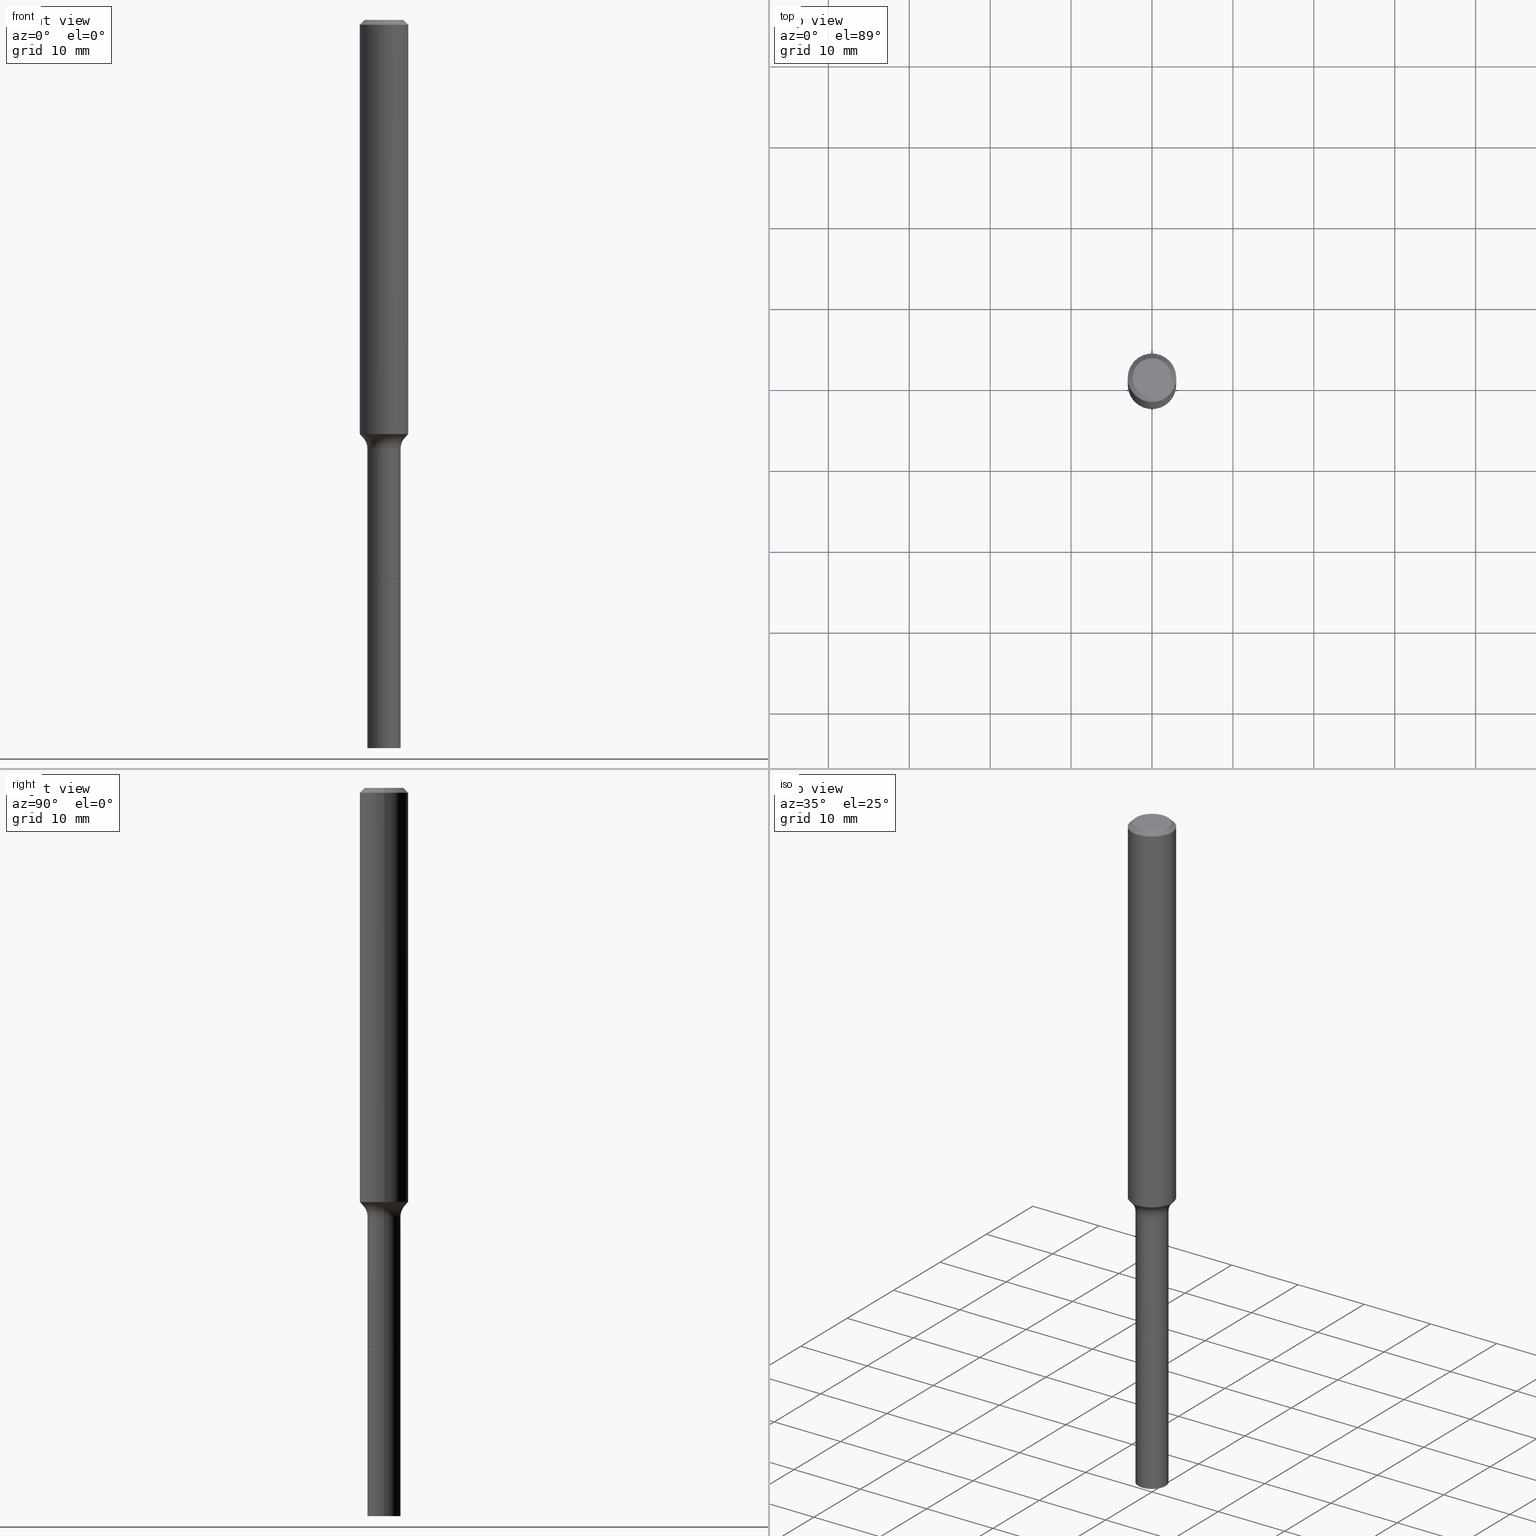
[diagram: canonical four-view strip — front | top / right | iso, engineering-drawing reading convention]
A machine part, canonical four-view strip (front | top / right | iso — engineering-drawing reading convention). The complete STEP part file that produces these views, byte-faithful:
ISO-10303-21;
HEADER;
FILE_DESCRIPTION (( 'STEP AP203' ),
    '1' );
FILE_NAME ('67827.STEP',
    '2025-04-01T15:31:14',
    ( '' ),
    ( '' ),
    'SwSTEP 2.0',
    'SolidWorks 2024',
    '' );
FILE_SCHEMA (( 'CONFIG_CONTROL_DESIGN' ));
ENDSEC;

DATA;
#1 = CIRCLE ( 'NONE', #419, 0.07999999999999990452 ) ;
#2 = DIRECTION ( 'NONE',  ( -2.445468806185136597E-29, 3.491481338843145583E-15, 1.000000000000000000 ) ) ;
#3 = CALENDAR_DATE ( 2025, 1, 4 ) ;
#4 = CARTESIAN_POINT ( 'NONE',  ( 3.772893820736570314E-46, -5.386692455541008845E-32, -1.542810037565835988E-17 ) ) ;
#5 = FACE_OUTER_BOUND ( 'NONE', #436, .T. ) ;
#6 = APPROVAL_ROLE ( '' ) ;
#7 = PRODUCT_RELATED_PRODUCT_CATEGORY ( 'detail', '', ( #500 ) ) ;
#8 = DIRECTION ( 'NONE',  ( 0.7071067811864629737, -2.468850131081371564E-15, 0.7071067811866319497 ) ) ;
#9 = MECHANICAL_CONTEXT ( 'NONE', #49, 'mechanical' ) ;
#10 = EDGE_LOOP ( 'NONE', ( #292, #508, #492, #300 ) ) ;
#11 = LINE ( 'NONE', #205, #420 ) ;
#12 = AXIS2_PLACEMENT_3D ( 'NONE', #149, #234, #271 ) ;
#13 = AXIS2_PLACEMENT_3D ( 'NONE', #322, #392, #488 ) ;
#14 = ORIENTED_EDGE ( 'NONE', *, *, #177, .F. ) ;
#15 = VERTEX_POINT ( 'NONE', #267 ) ;
#16 = CARTESIAN_POINT ( 'NONE',  ( -0.08069999999999995233, -7.815050502879196918E-15, -2.086299999999999599 ) ) ;
#17 = EDGE_CURVE ( 'NONE', #299, #179, #429, .T. ) ;
#18 = ORIENTED_EDGE ( 'NONE', *, *, #48, .F. ) ;
#19 = DIRECTION ( 'NONE',  ( 1.000000000000000000, -6.982962677686277755E-15, 0.000000000000000000 ) ) ;
#20 = CLOSED_SHELL ( 'NONE', ( #61, #232, #289, #395 ) ) ;
#21 = CIRCLE ( 'NONE', #228, 0.09447999999999998066 ) ;
#22 = ORIENTED_EDGE ( 'NONE', *, *, #258, .F. ) ;
#23 = ADVANCED_FACE ( 'NONE', ( #306 ), #25, .T. ) ;
#24 = CARTESIAN_POINT ( 'NONE',  ( 4.926838493732249022E-29, -7.034219621551748775E-15, -2.014680572195880703 ) ) ;
#25 = CONICAL_SURFACE ( 'NONE', #456, 0.1021917038704663744, 0.7504915783575545341 ) ;
#26 = DIRECTION ( 'NONE',  ( -2.445468806185136597E-29, 3.491481338843145583E-15, 1.000000000000000000 ) ) ;
#27 = AXIS2_PLACEMENT_3D ( 'NONE', #171, #359, #484 ) ;
#28 =( CONVERSION_BASED_UNIT ( 'INCH', #187 ) LENGTH_UNIT ( ) NAMED_UNIT ( #38 ) );
#29 = CC_DESIGN_PERSON_AND_ORGANIZATION_ASSIGNMENT ( #95, #162, ( #500 ) ) ;
#30 = DIRECTION ( 'NONE',  ( -2.445468806185136877E-29, 3.491481338843145188E-15, 1.000000000000000000 ) ) ;
#31 = CARTESIAN_POINT ( 'NONE',  ( 4.968557113111869591E-29, -7.093782753446066454E-15, -2.031740131194999854 ) ) ;
#32 =( NAMED_UNIT ( * ) SI_UNIT ( $, .STERADIAN. ) SOLID_ANGLE_UNIT ( ) );
#33 = CARTESIAN_POINT ( 'NONE',  ( 0.1181000000000002326, -7.858907513786497827E-15, -2.014680572195880703 ) ) ;
#34 = CARTESIAN_POINT ( 'NONE',  ( 6.649963324659240635E-29, -9.494385204716164018E-15, -2.719299999999999606 ) ) ;
#35 = DIRECTION ( 'NONE',  ( -2.445468806185136597E-29, 3.491481338843145583E-15, 1.000000000000000000 ) ) ;
#36 = EDGE_LOOP ( 'NONE', ( #253, #184, #406, #124 ) ) ;
#37 = AXIS2_PLACEMENT_3D ( 'NONE', #286, #438, #87 ) ;
#38 = DIMENSIONAL_EXPONENTS ( 1.000000000000000000, 0.000000000000000000, 0.000000000000000000, 0.000000000000000000, 0.000000000000000000, 0.000000000000000000, 0.000000000000000000 ) ;
#39 = EDGE_CURVE ( 'NONE', #344, #52, #70, .T. ) ;
#40 = DIRECTION ( 'NONE',  ( 2.438088387897960049E-29, -3.491481338843145188E-15, -1.000000000000000000 ) ) ;
#41 = DIRECTION ( 'NONE',  ( 1.000000000000000000, -6.982962677686264344E-15, 4.883557194083112901E-29 ) ) ;
#42 = CALENDAR_DATE ( 2025, 1, 4 ) ;
#43 = VERTEX_POINT ( 'NONE', #470 ) ;
#44 = AXIS2_PLACEMENT_3D ( 'NONE', #220, #413, #60 ) ;
#45 = DIRECTION ( 'NONE',  ( -1.000000000000000000, 6.982962677686266711E-15, 0.000000000000000000 ) ) ;
#46 = DIRECTION ( 'NONE',  ( -1.000000000000000000, 7.105427357601006592E-15, 0.000000000000000000 ) ) ;
#47 = COORDINATED_UNIVERSAL_TIME_OFFSET ( 5, 0, .BEHIND. ) ;
#48 = EDGE_CURVE ( 'NONE', #211, #59, #222, .T. ) ;
#49 = APPLICATION_CONTEXT ( 'configuration controlled 3d designs of mechanical parts and assemblies' ) ;
#50 = CARTESIAN_POINT ( 'NONE',  ( 6.649963324659240635E-29, -9.494385204716164018E-15, -2.719299999999999606 ) ) ;
#51 = CALENDAR_DATE ( 2025, 1, 4 ) ;
#52 = VERTEX_POINT ( 'NONE', #114 ) ;
#53 = DIRECTION ( 'NONE',  ( 1.000000000000000000, -6.982962677686271444E-15, 0.000000000000000000 ) ) ;
#54 = DATE_AND_TIME ( #137, #111 ) ;
#55 = CC_DESIGN_APPROVAL ( #191, ( #180 ) ) ;
#56 = VERTEX_POINT ( 'NONE', #119 ) ;
#57 = DIRECTION ( 'NONE',  ( -2.445468806185136877E-29, 3.491481338843145188E-15, 1.000000000000000000 ) ) ;
#58 = AXIS2_PLACEMENT_3D ( 'NONE', #443, #94, #329 ) ;
#59 = VERTEX_POINT ( 'NONE', #343 ) ;
#60 = DIRECTION ( 'NONE',  ( -1.000000000000000000, 6.982962677686266711E-15, 0.000000000000000000 ) ) ;
#61 = ADVANCED_FACE ( 'NONE', ( #225 ), #383, .T. ) ;
#62 = VERTEX_POINT ( 'NONE', #33 ) ;
#63 = VERTEX_POINT ( 'NONE', #194 ) ;
#64 = LINE ( 'NONE', #298, #151 ) ;
#65 = CIRCLE ( 'NONE', #58, 0.1180999999999999966 ) ;
#66 = CARTESIAN_POINT ( 'NONE',  ( 0.08069999999999999396, -1.005791029280544746E-14, -2.719299999999999606 ) ) ;
#67 = CC_DESIGN_PERSON_AND_ORGANIZATION_ASSIGNMENT ( #248, #240, ( #180 ) ) ;
#68 = DIRECTION ( 'NONE',  ( -2.445468806185136597E-29, 3.491481338843145583E-15, 1.000000000000000000 ) ) ;
#69 = CARTESIAN_POINT ( 'NONE',  ( 4.968557113111869591E-29, -7.093782753446066454E-15, -2.031740131194999854 ) ) ;
#70 = LINE ( 'NONE', #188, #227 ) ;
#71 = LINE ( 'NONE', #156, #333 ) ;
#72 = VECTOR ( 'NONE', #387, 39.37007874015748143 ) ;
#73 = VECTOR ( 'NONE', #347, 39.37007874015748143 ) ;
#74 = CARTESIAN_POINT ( 'NONE',  ( 6.649963324659240635E-29, -9.494385204716164018E-15, -2.719299999999999606 ) ) ;
#75 =( LENGTH_UNIT ( ) NAMED_UNIT ( * ) SI_UNIT ( $, .METRE. ) );
#76 = FACE_OUTER_BOUND ( 'NONE', #10, .T. ) ;
#77 = DIRECTION ( 'NONE',  ( -1.000000000000000000, 6.982962677686265922E-15, -4.876176775795935793E-29 ) ) ;
#78 = ORIENTED_EDGE ( 'NONE', *, *, #80, .T. ) ;
#79 = AXIS2_PLACEMENT_3D ( 'NONE', #142, #455, #19 ) ;
#80 = EDGE_CURVE ( 'NONE', #368, #63, #90, .T. ) ;
#81 = AXIS2_PLACEMENT_3D ( 'NONE', #189, #230, #386 ) ;
#82 = DATE_AND_TIME ( #126, #163 ) ;
#83 = ORIENTED_EDGE ( 'NONE', *, *, #231, .T. ) ;
#84 = CARTESIAN_POINT ( 'NONE',  ( -0.08069999999999999396, -1.035946752856114053E-14, -3.543299999999999894 ) ) ;
#85 = COORDINATED_UNIVERSAL_TIME_OFFSET ( 5, 0, .BEHIND. ) ;
#86 = ORIENTED_EDGE ( 'NONE', *, *, #177, .T. ) ;
#87 = DIRECTION ( 'NONE',  ( 1.000000000000000000, -6.982962677686277755E-15, 0.000000000000000000 ) ) ;
#88 = EDGE_CURVE ( 'NONE', #15, #285, #418, .T. ) ;
#89 = EDGE_LOOP ( 'NONE', ( #461, #86, #416, #375 ) ) ;
#90 = CIRCLE ( 'NONE', #183, 0.08069999999999995233 ) ;
#91 = EDGE_CURVE ( 'NONE', #62, #59, #269, .T. ) ;
#92 = AXIS2_PLACEMENT_3D ( 'NONE', #93, #204, #53 ) ;
#93 = CARTESIAN_POINT ( 'NONE',  ( 8.665029620955794069E-29, -1.237136582792291707E-14, -3.543299999999999894 ) ) ;
#94 = DIRECTION ( 'NONE',  ( -2.445468806185136597E-29, 3.491481338843145583E-15, 1.000000000000000000 ) ) ;
#95 = PERSON_AND_ORGANIZATION ( #462, #263 ) ;
#96 = CARTESIAN_POINT ( 'NONE',  ( 0.1021917038704662634, -7.807383607542701050E-15, -2.031740131194999854 ) ) ;
#97 = APPROVAL_ROLE ( '' ) ;
#98 = ORIENTED_EDGE ( 'NONE', *, *, #283, .F. ) ;
#99 = LINE ( 'NONE', #408, #203 ) ;
#100 = ORIENTED_EDGE ( 'NONE', *, *, #431, .T. ) ;
#101 = ADVANCED_FACE ( 'NONE', ( #76 ), #442, .T. ) ;
#102 = FACE_OUTER_BOUND ( 'NONE', #36, .T. ) ;
#103 = AXIS2_PLACEMENT_3D ( 'NONE', #34, #466, #274 ) ;
#104 = ORIENTED_EDGE ( 'NONE', *, *, #385, .F. ) ;
#105 = CARTESIAN_POINT ( 'NONE',  ( 0.08070000000000004947, -1.005616455213602517E-14, -2.718799999999999439 ) ) ;
#106 = ORIENTED_EDGE ( 'NONE', *, *, #195, .T. ) ;
#107 = CARTESIAN_POINT ( 'NONE',  ( 0.000000000000000000, 0.000000000000000000, 0.000000000000000000 ) ) ;
#108 = FACE_OUTER_BOUND ( 'NONE', #170, .T. ) ;
#109 = ADVANCED_FACE ( 'NONE', ( #235 ), #334, .F. ) ;
#110 = ORIENTED_EDGE ( 'NONE', *, *, #378, .T. ) ;
#111 = LOCAL_TIME ( 11, 31, 14.00000000000000000, #85 ) ;
#112 = AXIS2_PLACEMENT_3D ( 'NONE', #489, #239, #242 ) ;
#113 = DIRECTION ( 'NONE',  ( 1.000000000000000000, -6.982962677686266711E-15, 0.000000000000000000 ) ) ;
#114 = CARTESIAN_POINT ( 'NONE',  ( -0.1180999999999999966, -2.719193234454931553E-15, -0.02362000000000014088 ) ) ;
#115 = DESIGN_CONTEXT ( 'detailed design', #382, 'design' ) ;
#116 = FACE_OUTER_BOUND ( 'NONE', #403, .T. ) ;
#117 = DIRECTION ( 'NONE',  ( 1.000000000000000000, -6.982962677686264344E-15, 0.000000000000000000 ) ) ;
#118 = EDGE_CURVE ( 'NONE', #63, #368, #221, .T. ) ;
#119 = CARTESIAN_POINT ( 'NONE',  ( -0.09447999999999998066, 7.009847083995354710E-16, -3.085620075132147757E-17 ) ) ;
#120 = VECTOR ( 'NONE', #57, 39.37007874015748143 ) ;
#121 = DIRECTION ( 'NONE',  ( -2.445468806185136597E-29, 3.491481338843145583E-15, 1.000000000000000000 ) ) ;
#122 = DIRECTION ( 'NONE',  ( 1.000000000000000000, -6.982962677686266711E-15, 0.000000000000000000 ) ) ;
#123 = ADVANCED_FACE ( 'NONE', ( #404 ), #505, .T. ) ;
#124 = ORIENTED_EDGE ( 'NONE', *, *, #231, .F. ) ;
#125 = CARTESIAN_POINT ( 'NONE',  ( 0.08019999999999999352, -1.005441881146660445E-14, -2.719299999999999606 ) ) ;
#126 = CALENDAR_DATE ( 2025, 1, 4 ) ;
#127 = CIRCLE ( 'NONE', #27, 0.1021917038704663744 ) ;
#128 =( GEOMETRIC_REPRESENTATION_CONTEXT ( 3 ) GLOBAL_UNCERTAINTY_ASSIGNED_CONTEXT ( ( #243 ) ) GLOBAL_UNIT_ASSIGNED_CONTEXT ( ( #28, #224, #32 ) ) REPRESENTATION_CONTEXT ( 'NONE', 'WORKASPACE' ) );
#129 = DATE_TIME_ROLE ( 'creation_date' ) ;
#130 = EDGE_CURVE ( 'NONE', #287, #15, #464, .T. ) ;
#131 = FACE_OUTER_BOUND ( 'NONE', #178, .T. ) ;
#132 = SHAPE_DEFINITION_REPRESENTATION ( #389, #472 ) ;
#133 = CYLINDRICAL_SURFACE ( 'NONE', #174, 0.08069999999999999396 ) ;
#134 = APPLICATION_PROTOCOL_DEFINITION ( 'international standard', 'config_control_design', 1994, #49 ) ;
#135 = AXIS2_PLACEMENT_3D ( 'NONE', #435, #517, #164 ) ;
#136 = DIRECTION ( 'NONE',  ( 2.438088387897960049E-29, -3.491481338843145188E-15, -1.000000000000000000 ) ) ;
#137 = CALENDAR_DATE ( 2025, 1, 4 ) ;
#138 = ORIENTED_EDGE ( 'NONE', *, *, #349, .T. ) ;
#139 = DIRECTION ( 'NONE',  ( -1.000000000000000000, 6.982962677686265922E-15, -4.876176775795935793E-29 ) ) ;
#140 = EDGE_CURVE ( 'NONE', #287, #173, #325, .T. ) ;
#141 = VERTEX_POINT ( 'NONE', #246 ) ;
#142 = CARTESIAN_POINT ( 'NONE',  ( 6.649963324659240635E-29, -9.494385204716164018E-15, -2.719299999999999606 ) ) ;
#143 = ORIENTED_EDGE ( 'NONE', *, *, #308, .F. ) ;
#144 = DIRECTION ( 'NONE',  ( -2.445468806185136597E-29, 3.491481338843145583E-15, 1.000000000000000000 ) ) ;
#145 = ORIENTED_EDGE ( 'NONE', *, *, #195, .F. ) ;
#146 = CARTESIAN_POINT ( 'NONE',  ( 6.649963324659240635E-29, -9.494385204716164018E-15, -2.719299999999999606 ) ) ;
#147 = APPROVAL ( #172, 'UNSPECIFIED' ) ;
#148 = EDGE_LOOP ( 'NONE', ( #153, #341, #446, #278 ) ) ;
#149 = CARTESIAN_POINT ( 'NONE',  ( 0.000000000000000000, 0.000000000000000000, 0.000000000000000000 ) ) ;
#150 = CLOSED_SHELL ( 'NONE', ( #324, #123, #101, #23, #249, #514, #374, #336, #437, #201, #355, #109, #425, #476 ) ) ;
#151 = VECTOR ( 'NONE', #460, 39.37007874015748143 ) ;
#152 = VECTOR ( 'NONE', #311, 39.37007874015748143 ) ;
#153 = ORIENTED_EDGE ( 'NONE', *, *, #258, .T. ) ;
#154 = CARTESIAN_POINT ( 'NONE',  ( 6.649963324659240635E-29, -9.494385204716164018E-15, -2.719299999999999606 ) ) ;
#155 = EDGE_CURVE ( 'NONE', #56, #211, #21, .T. ) ;
#156 = CARTESIAN_POINT ( 'NONE',  ( -0.08070000000000000784, 5.734079877584009057E-16, -3.969580617835709444E-30 ) ) ;
#157 = CC_DESIGN_APPROVAL ( #510, ( #297 ) ) ;
#158 = LINE ( 'NONE', #346, #152 ) ;
#159 = DIRECTION ( 'NONE',  ( -2.445468806185136597E-29, 3.491481338843145583E-15, 1.000000000000000000 ) ) ;
#160 = CARTESIAN_POINT ( 'NONE',  ( 0.000000000000000000, 0.000000000000000000, 0.000000000000000000 ) ) ;
#161 = ORIENTED_EDGE ( 'NONE', *, *, #223, .T. ) ;
#162 = PERSON_AND_ORGANIZATION_ROLE ( 'design_owner' ) ;
#163 = LOCAL_TIME ( 11, 31, 14.00000000000000000, #479 ) ;
#164 = DIRECTION ( 'NONE',  ( 1.000000000000000000, -6.982962677686266711E-15, 0.000000000000000000 ) ) ;
#165 = AXIS2_PLACEMENT_3D ( 'NONE', #428, #400, #447 ) ;
#166 = CARTESIAN_POINT ( 'NONE',  ( 8.665029620955794069E-29, -1.237136582792291707E-14, -3.543299999999999894 ) ) ;
#167 = APPLICATION_PROTOCOL_DEFINITION ( 'international standard', 'config_control_design', 1994, #382 ) ;
#168 = CARTESIAN_POINT ( 'NONE',  ( 0.1606999999999999540, -8.406439619532635662E-15, -2.086299999999999599 ) ) ;
#169 = PERSON_AND_ORGANIZATION_ROLE ( 'creator' ) ;
#170 = EDGE_LOOP ( 'NONE', ( #18, #441, #110, #83 ) ) ;
#171 = CARTESIAN_POINT ( 'NONE',  ( 4.968557113111869591E-29, -7.093782753446066454E-15, -2.031740131194999854 ) ) ;
#172 = APPROVAL_STATUS ( 'not_yet_approved' ) ;
#173 = VERTEX_POINT ( 'NONE', #452 ) ;
#174 = AXIS2_PLACEMENT_3D ( 'NONE', #50, #209, #326 ) ;
#175 = CIRCLE ( 'NONE', #465, 0.1181000000000002326 ) ;
#176 = CARTESIAN_POINT ( 'NONE',  ( 8.665029620955794069E-29, -1.237136582792291707E-14, -3.543299999999999894 ) ) ;
#177 = EDGE_CURVE ( 'NONE', #43, #344, #99, .T. ) ;
#178 = EDGE_LOOP ( 'NONE', ( #451, #328, #294, #98 ) ) ;
#179 = VERTEX_POINT ( 'NONE', #373 ) ;
#180 = SECURITY_CLASSIFICATION ( '', '', #449 ) ;
#181 = EDGE_LOOP ( 'NONE', ( #104, #106, #257, #295 ) ) ;
#182 = EDGE_CURVE ( 'NONE', #62, #344, #302, .T. ) ;
#183 = AXIS2_PLACEMENT_3D ( 'NONE', #513, #159, #117 ) ;
#184 = ORIENTED_EDGE ( 'NONE', *, *, #518, .T. ) ;
#185 = DIRECTION ( 'NONE',  ( 1.000000000000000000, -6.982962677686277755E-15, 0.000000000000000000 ) ) ;
#186 = DIRECTION ( 'NONE',  ( 1.000000000000000000, -6.982962677686266711E-15, 0.000000000000000000 ) ) ;
#187 = LENGTH_MEASURE_WITH_UNIT ( LENGTH_MEASURE( 0.02539999999999999897 ), #75 );
#188 = CARTESIAN_POINT ( 'NONE',  ( -0.1181000000000001215, 8.391509709326791832E-16, -5.809262341591049389E-30 ) ) ;
#189 = CARTESIAN_POINT ( 'NONE',  ( 6.648740590256147833E-29, -9.492639464046741726E-15, -2.718799999999999439 ) ) ;
#190 = AXIS2_PLACEMENT_3D ( 'NONE', #396, #275, #45 ) ;
#191 = APPROVAL ( #358, 'UNSPECIFIED' ) ;
#192 = CARTESIAN_POINT ( 'NONE',  ( 4.926838493732249022E-29, -7.034219621551748775E-15, -2.014680572195880703 ) ) ;
#193 = DIRECTION ( 'NONE',  ( -2.445468806185136597E-29, 3.491481338843145583E-15, 1.000000000000000000 ) ) ;
#194 = CARTESIAN_POINT ( 'NONE',  ( 0.08069999999999995233, -7.847802605317735588E-15, -2.086299999999999599 ) ) ;
#195 = EDGE_CURVE ( 'NONE', #179, #299, #273, .T. ) ;
#196 = PLANE ( 'NONE',  #409 ) ;
#197 = CIRCLE ( 'NONE', #135, 0.1180999999999999966 ) ;
#198 = PERSON_AND_ORGANIZATION ( #462, #263 ) ;
#199 = ORIENTED_EDGE ( 'NONE', *, *, #378, .F. ) ;
#200 = PLANE ( 'NONE',  #497 ) ;
#201 = ADVANCED_FACE ( 'NONE', ( #102 ), #412, .T. ) ;
#202 = APPROVAL_DATE_TIME ( #54, #147 ) ;
#203 = VECTOR ( 'NONE', #214, 39.37007874015748143 ) ;
#204 = DIRECTION ( 'NONE',  ( -2.445468806185136597E-29, 3.491481338843145583E-15, 1.000000000000000000 ) ) ;
#205 = CARTESIAN_POINT ( 'NONE',  ( 0.08019999999999999352, -1.005441881146660445E-14, -2.719299999999999606 ) ) ;
#206 = CARTESIAN_POINT ( 'NONE',  ( -0.1181000000000002326, -6.195068650619069000E-15, -2.014680572195880703 ) ) ;
#207 = ORIENTED_EDGE ( 'NONE', *, *, #223, .F. ) ;
#208 = DIRECTION ( 'NONE',  ( 1.000000000000000000, -6.982962677686267499E-15, 4.875432709231658792E-29 ) ) ;
#209 = DIRECTION ( 'NONE',  ( -2.445468806185136597E-29, 3.491481338843145583E-15, 1.000000000000000000 ) ) ;
#210 = APPROVAL_DATE_TIME ( #365, #510 ) ;
#211 = VERTEX_POINT ( 'NONE', #216 ) ;
#212 = VECTOR ( 'NONE', #424, 39.37007874015748143 ) ;
#213 = CONICAL_SURFACE ( 'NONE', #390, 0.08019999999999999352, 0.7853981633973288190 ) ;
#214 = DIRECTION ( 'NONE',  ( -0.6819983600624932585, 7.399397606724266066E-15, 0.7313537016191753448 ) ) ;
#215 = EDGE_LOOP ( 'NONE', ( #100, #356, #495, #337 ) ) ;
#216 = CARTESIAN_POINT ( 'NONE',  ( 0.09447999999999998066, -7.704367267948738690E-16, -3.085620075131172158E-17 ) ) ;
#217 = EDGE_CURVE ( 'NONE', #354, #62, #64, .T. ) ;
#218 = ORIENTED_EDGE ( 'NONE', *, *, #48, .T. ) ;
#219 = VERTEX_POINT ( 'NONE', #105 ) ;
#220 = CARTESIAN_POINT ( 'NONE',  ( 5.776197320209327532E-31, -8.246878922347559293E-17, -0.02362000000000014088 ) ) ;
#221 = CIRCLE ( 'NONE', #165, 0.08069999999999995233 ) ;
#222 = LINE ( 'NONE', #310, #72 ) ;
#223 = EDGE_CURVE ( 'NONE', #173, #285, #280, .T. ) ;
#224 =( NAMED_UNIT ( * ) PLANE_ANGLE_UNIT ( ) SI_UNIT ( $, .RADIAN. ) );
#225 = FACE_OUTER_BOUND ( 'NONE', #148, .T. ) ;
#226 = DIRECTION ( 'NONE',  ( 1.000000000000000000, -6.982962677686266711E-15, 4.876176775795935793E-29 ) ) ;
#227 = VECTOR ( 'NONE', #30, 39.37007874015748143 ) ;
#228 = AXIS2_PLACEMENT_3D ( 'NONE', #293, #35, #208 ) ;
#229 = EDGE_LOOP ( 'NONE', ( #453, #218, #486, #199 ) ) ;
#230 = DIRECTION ( 'NONE',  ( -2.445468806185136597E-29, 3.491481338843145583E-15, 1.000000000000000000 ) ) ;
#231 = EDGE_CURVE ( 'NONE', #52, #59, #65, .T. ) ;
#232 = ADVANCED_FACE ( 'NONE', ( #279 ), #200, .T. ) ;
#233 = CARTESIAN_POINT ( 'NONE',  ( -0.08069999999999999396, -8.920977216957763211E-15, -2.719299999999999606 ) ) ;
#234 = DIRECTION ( 'NONE',  ( -2.445468806185136597E-29, 3.491481338843145583E-15, 1.000000000000000000 ) ) ;
#235 = FACE_OUTER_BOUND ( 'NONE', #377, .T. ) ;
#236 = APPROVAL_PERSON_ORGANIZATION ( #439, #510, #399 ) ;
#237 = APPROVAL_DATE_TIME ( #82, #191 ) ;
#238 = EDGE_CURVE ( 'NONE', #43, #368, #1, .T. ) ;
#239 = DIRECTION ( 'NONE',  ( -2.445468806185136597E-29, 3.491481338843145583E-15, 1.000000000000000000 ) ) ;
#240 = PERSON_AND_ORGANIZATION_ROLE ( 'classification_officer' ) ;
#241 = CC_DESIGN_APPROVAL ( #147, ( #454 ) ) ;
#242 = DIRECTION ( 'NONE',  ( 1.000000000000000000, -6.982962677686264344E-15, 4.883557194083112901E-29 ) ) ;
#243 = UNCERTAINTY_MEASURE_WITH_UNIT (LENGTH_MEASURE( 1.000000000000000082E-05 ), #28, 'distance_accuracy_value', 'NONE');
#244 = ORIENTED_EDGE ( 'NONE', *, *, #308, .T. ) ;
#245 = AXIS2_PLACEMENT_3D ( 'NONE', #397, #288, #401 ) ;
#246 = CARTESIAN_POINT ( 'NONE',  ( -0.08070000000000004947, -7.815050502879196918E-15, -2.718799999999999439 ) ) ;
#247 = DIRECTION ( 'NONE',  ( -2.445468806185136597E-29, 3.491481338843145583E-15, 1.000000000000000000 ) ) ;
#248 = PERSON_AND_ORGANIZATION ( #462, #263 ) ;
#249 = ADVANCED_FACE ( 'NONE', ( #5 ), #457, .F. ) ;
#250 = ORIENTED_EDGE ( 'NONE', *, *, #217, .T. ) ;
#251 = DIRECTION ( 'NONE',  ( -2.445468806185136877E-29, 3.491481338843145188E-15, 1.000000000000000000 ) ) ;
#252 = CARTESIAN_POINT ( 'NONE',  ( -0.1606999999999999540, -6.142435340861973053E-15, -2.086299999999999599 ) ) ;
#253 = ORIENTED_EDGE ( 'NONE', *, *, #39, .F. ) ;
#254 = MANIFOLD_SOLID_BREP ( 'Body-Move/Copy2[1]', #20 ) ;
#255 = ORIENTED_EDGE ( 'NONE', *, *, #518, .F. ) ;
#256 = AXIS2_PLACEMENT_3D ( 'NONE', #493, #277, #363 ) ;
#257 = ORIENTED_EDGE ( 'NONE', *, *, #283, .T. ) ;
#258 = EDGE_CURVE ( 'NONE', #15, #287, #515, .T. ) ;
#259 = ORIENTED_EDGE ( 'NONE', *, *, #450, .F. ) ;
#260 = DIRECTION ( 'NONE',  ( -2.445468806185136597E-29, 3.491481338843145583E-15, 1.000000000000000000 ) ) ;
#261 = DIRECTION ( 'NONE',  ( 1.000000000000000000, -6.982962677686266711E-15, 4.876176775795935793E-29 ) ) ;
#262 = CARTESIAN_POINT ( 'NONE',  ( 6.649963324659240635E-29, -9.494385204716164018E-15, -2.719299999999999606 ) ) ;
#263 = ORGANIZATION ( 'UNSPECIFIED', 'UNSPECIFIED', '' ) ;
#264 = DIRECTION ( 'NONE',  ( 1.000000000000000000, -6.982962677686266711E-15, 0.000000000000000000 ) ) ;
#265 = EDGE_CURVE ( 'NONE', #141, #219, #490, .T. ) ;
#266 = FACE_OUTER_BOUND ( 'NONE', #215, .T. ) ;
#267 = CARTESIAN_POINT ( 'NONE',  ( 0.08069999999999999396, -1.293489091601219894E-14, -3.543299999999999894 ) ) ;
#268 = DIRECTION ( 'NONE',  ( -2.445468806185136877E-29, 3.491481338843145188E-15, 1.000000000000000000 ) ) ;
#269 = LINE ( 'NONE', #353, #120 ) ;
#270 = APPROVAL_PERSON_ORGANIZATION ( #198, #147, #6 ) ;
#271 = DIRECTION ( 'NONE',  ( 1.000000000000000000, -6.982962677686266711E-15, 4.876176775795935793E-29 ) ) ;
#272 = EDGE_CURVE ( 'NONE', #59, #52, #197, .T. ) ;
#273 = CIRCLE ( 'NONE', #79, 0.08019999999999999352 ) ;
#274 = DIRECTION ( 'NONE',  ( 1.000000000000000000, -6.982962677686265922E-15, 4.876176775795935793E-29 ) ) ;
#275 = DIRECTION ( 'NONE',  ( 2.445468806185136597E-29, -3.491481338843145583E-15, -1.000000000000000000 ) ) ;
#276 = CYLINDRICAL_SURFACE ( 'NONE', #12, 0.08070000000000000784 ) ;
#277 = DIRECTION ( 'NONE',  ( -2.445468806185136597E-29, 3.491481338843145583E-15, 1.000000000000000000 ) ) ;
#278 = ORIENTED_EDGE ( 'NONE', *, *, #88, .F. ) ;
#279 = FACE_OUTER_BOUND ( 'NONE', #371, .T. ) ;
#280 = CIRCLE ( 'NONE', #423, 0.08069999999999999396 ) ;
#281 = AXIS2_PLACEMENT_3D ( 'NONE', #422, #351, #122 ) ;
#282 = ORIENTED_EDGE ( 'NONE', *, *, #118, .T. ) ;
#283 = EDGE_CURVE ( 'NONE', #299, #219, #11, .T. ) ;
#284 = DIRECTION ( 'NONE',  ( -1.000000000000000000, 6.982962677686265922E-15, -4.876176775795935793E-29 ) ) ;
#285 = VERTEX_POINT ( 'NONE', #487 ) ;
#286 = CARTESIAN_POINT ( 'NONE',  ( 6.649963324659240635E-29, -9.494385204716164018E-15, -2.719299999999999606 ) ) ;
#287 = VERTEX_POINT ( 'NONE', #84 ) ;
#288 = DIRECTION ( 'NONE',  ( -2.445468806185136597E-29, 3.491481338843145583E-15, 1.000000000000000000 ) ) ;
#289 = ADVANCED_FACE ( 'NONE', ( #321 ), #133, .T. ) ;
#290 = AXIS2_PLACEMENT_3D ( 'NONE', #405, #394, #318 ) ;
#291 = DATE_TIME_ROLE ( 'classification_date' ) ;
#292 = ORIENTED_EDGE ( 'NONE', *, *, #182, .T. ) ;
#293 = CARTESIAN_POINT ( 'NONE',  ( 7.545787641473140628E-46, -1.077338491108201769E-31, -3.085620075131671975E-17 ) ) ;
#294 = ORIENTED_EDGE ( 'NONE', *, *, #431, .F. ) ;
#295 = ORIENTED_EDGE ( 'NONE', *, *, #265, .F. ) ;
#296 = AXIS2_PLACEMENT_3D ( 'NONE', #107, #144, #261 ) ;
#297 = PRODUCT_DEFINITION ( 'UNKNOWN', '', #454, #115 ) ;
#298 = CARTESIAN_POINT ( 'NONE',  ( 0.1021917038704663744, -7.807383607542701050E-15, -2.031740131194999854 ) ) ;
#299 = VERTEX_POINT ( 'NONE', #125 ) ;
#300 = ORIENTED_EDGE ( 'NONE', *, *, #91, .F. ) ;
#301 = CC_DESIGN_DATE_AND_TIME_ASSIGNMENT ( #330, #291, ( #180 ) ) ;
#302 = CIRCLE ( 'NONE', #379, 0.1181000000000002326 ) ;
#303 = CARTESIAN_POINT ( 'NONE',  ( -0.08019999999999999352, -8.924529930636564898E-15, -2.719299999999999606 ) ) ;
#304 = AXIS2_PLACEMENT_3D ( 'NONE', #160, #381, #226 ) ;
#305 = DIRECTION ( 'NONE',  ( 1.000000000000000000, -6.982962677686277755E-15, 0.000000000000000000 ) ) ;
#306 = FACE_OUTER_BOUND ( 'NONE', #89, .T. ) ;
#307 = DIRECTION ( 'NONE',  ( 1.000000000000000000, -6.982962677686271444E-15, 0.000000000000000000 ) ) ;
#308 = EDGE_CURVE ( 'NONE', #43, #354, #127, .T. ) ;
#309 = FACE_OUTER_BOUND ( 'NONE', #323, .T. ) ;
#310 = CARTESIAN_POINT ( 'NONE',  ( 0.1180999999999999966, -8.926936027602933910E-16, -0.02362000000000014088 ) ) ;
#311 = DIRECTION ( 'NONE',  ( -2.445468806185136877E-29, 3.491481338843145188E-15, 1.000000000000000000 ) ) ;
#312 = CONICAL_SURFACE ( 'NONE', #37, 0.08019999999999999352, 0.7853981633973288190 ) ;
#313 = DIRECTION ( 'NONE',  ( 1.000000000000000000, -6.982962677686271444E-15, 0.000000000000000000 ) ) ;
#314 = LINE ( 'NONE', #471, #212 ) ;
#315 = ORIENTED_EDGE ( 'NONE', *, *, #265, .T. ) ;
#316 = CC_DESIGN_DATE_AND_TIME_ASSIGNMENT ( #445, #129, ( #297 ) ) ;
#317 = LOCAL_TIME ( 11, 31, 14.00000000000000000, #482 ) ;
#318 = DIRECTION ( 'NONE',  ( 1.000000000000000000, -6.982962677686266711E-15, 0.000000000000000000 ) ) ;
#319 = AXIS2_PLACEMENT_3D ( 'NONE', #74, #348, #421 ) ;
#320 = APPROVAL_STATUS ( 'not_yet_approved' ) ;
#321 = FACE_OUTER_BOUND ( 'NONE', #463, .T. ) ;
#322 = CARTESIAN_POINT ( 'NONE',  ( 0.000000000000000000, 0.000000000000000000, 0.000000000000000000 ) ) ;
#323 = EDGE_LOOP ( 'NONE', ( #362, #145 ) ) ;
#324 = ADVANCED_FACE ( 'NONE', ( #131 ), #312, .T. ) ;
#325 = LINE ( 'NONE', #233, #370 ) ;
#326 = DIRECTION ( 'NONE',  ( 1.000000000000000000, -6.982962677686271444E-15, 0.000000000000000000 ) ) ;
#327 = PERSON_AND_ORGANIZATION ( #462, #263 ) ;
#328 = ORIENTED_EDGE ( 'NONE', *, *, #385, .T. ) ;
#329 = DIRECTION ( 'NONE',  ( 1.000000000000000000, -6.982962677686266711E-15, 0.000000000000000000 ) ) ;
#330 = DATE_AND_TIME ( #51, #440 ) ;
#331 = TOROIDAL_SURFACE ( 'NONE', #112, 0.1606999999999999540, 0.07999999999999990452 ) ;
#332 = ORIENTED_EDGE ( 'NONE', *, *, #130, .F. ) ;
#333 = VECTOR ( 'NONE', #268, 39.37007874015748143 ) ;
#334 = PLANE ( 'NONE',  #384 ) ;
#335 = ORIENTED_EDGE ( 'NONE', *, *, #407, .T. ) ;
#336 = ADVANCED_FACE ( 'NONE', ( #364 ), #331, .F. ) ;
#337 = ORIENTED_EDGE ( 'NONE', *, *, #502, .F. ) ;
#338 = FACE_OUTER_BOUND ( 'NONE', #483, .T. ) ;
#339 = ORIENTED_EDGE ( 'NONE', *, *, #238, .F. ) ;
#340 = AXIS2_PLACEMENT_3D ( 'NONE', #168, #448, #366 ) ;
#341 = ORIENTED_EDGE ( 'NONE', *, *, #140, .T. ) ;
#342 = EDGE_CURVE ( 'NONE', #211, #56, #398, .T. ) ;
#343 = CARTESIAN_POINT ( 'NONE',  ( 0.1180999999999999966, -9.071566814582237199E-16, -0.02362000000000014088 ) ) ;
#344 = VERTEX_POINT ( 'NONE', #206 ) ;
#345 = VECTOR ( 'NONE', #469, 39.37007874015748854 ) ;
#346 = CARTESIAN_POINT ( 'NONE',  ( 0.08070000000000000784, -5.635250880892817638E-16, 3.935074658067320359E-30 ) ) ;
#347 = DIRECTION ( 'NONE',  ( -2.445468806185136877E-29, 3.491481338843145188E-15, 1.000000000000000000 ) ) ;
#348 = DIRECTION ( 'NONE',  ( -2.445468806185136597E-29, 3.491481338843145583E-15, 1.000000000000000000 ) ) ;
#349 = EDGE_CURVE ( 'NONE', #354, #63, #480, .T. ) ;
#350 = CARTESIAN_POINT ( 'NONE',  ( 6.649963324659240635E-29, -9.494385204716164018E-15, -2.719299999999999606 ) ) ;
#351 = DIRECTION ( 'NONE',  ( -2.445468806185136597E-29, 3.491481338843145583E-15, 1.000000000000000000 ) ) ;
#352 = AXIS2_PLACEMENT_3D ( 'NONE', #432, #247, #41 ) ;
#353 = CARTESIAN_POINT ( 'NONE',  ( 0.1181000000000001215, -8.246878922347489529E-16, 5.758764772215006046E-30 ) ) ;
#354 = VERTEX_POINT ( 'NONE', #96 ) ;
#355 = ADVANCED_FACE ( 'NONE', ( #108 ), #430, .T. ) ;
#356 = ORIENTED_EDGE ( 'NONE', *, *, #450, .T. ) ;
#357 = DIRECTION ( 'NONE',  ( 7.105427357601001859E-15, 1.000000000000000000, -3.491481338843145583E-15 ) ) ;
#358 = APPROVAL_STATUS ( 'not_yet_approved' ) ;
#359 = DIRECTION ( 'NONE',  ( -2.445468806185136597E-29, 3.491481338843145583E-15, 1.000000000000000000 ) ) ;
#360 = PERSON_AND_ORGANIZATION_ROLE ( 'creator' ) ;
#361 = CC_DESIGN_PERSON_AND_ORGANIZATION_ASSIGNMENT ( #433, #367, ( #454 ) ) ;
#362 = ORIENTED_EDGE ( 'NONE', *, *, #17, .F. ) ;
#363 = DIRECTION ( 'NONE',  ( 1.000000000000000000, -6.982962677686266711E-15, 4.876176775795935793E-29 ) ) ;
#364 = FACE_OUTER_BOUND ( 'NONE', #414, .T. ) ;
#365 = DATE_AND_TIME ( #3, #478 ) ;
#366 = DIRECTION ( 'NONE',  ( 1.000000000000000000, -6.982962677686256455E-15, 0.000000000000000000 ) ) ;
#367 = PERSON_AND_ORGANIZATION_ROLE ( 'design_supplier' ) ;
#368 = VERTEX_POINT ( 'NONE', #16 ) ;
#369 = DIRECTION ( 'NONE',  ( 1.000000000000000000, -6.982962677686271444E-15, 0.000000000000000000 ) ) ;
#370 = VECTOR ( 'NONE', #251, 39.37007874015748143 ) ;
#371 = EDGE_LOOP ( 'NONE', ( #22, #332 ) ) ;
#372 = AXIS2_PLACEMENT_3D ( 'NONE', #31, #193, #113 ) ;
#373 = CARTESIAN_POINT ( 'NONE',  ( -0.08019999999999999352, -8.921880703462452908E-15, -2.719299999999999606 ) ) ;
#374 = ADVANCED_FACE ( 'NONE', ( #338 ), #276, .T. ) ;
#375 = ORIENTED_EDGE ( 'NONE', *, *, #217, .F. ) ;
#376 = ORIENTED_EDGE ( 'NONE', *, *, #130, .T. ) ;
#377 = EDGE_LOOP ( 'NONE', ( #499, #504 ) ) ;
#378 = EDGE_CURVE ( 'NONE', #56, #52, #314, .T. ) ;
#379 = AXIS2_PLACEMENT_3D ( 'NONE', #24, #68, #186 ) ;
#380 = DIRECTION ( 'NONE',  ( -2.445468806185136597E-29, 3.491481338843145583E-15, 1.000000000000000000 ) ) ;
#381 = DIRECTION ( 'NONE',  ( -2.445468806185136597E-29, 3.491481338843145583E-15, 1.000000000000000000 ) ) ;
#382 = APPLICATION_CONTEXT ( 'configuration controlled 3d designs of mechanical parts and assemblies' ) ;
#383 = CYLINDRICAL_SURFACE ( 'NONE', #496, 0.08069999999999999396 ) ;
#384 = AXIS2_PLACEMENT_3D ( 'NONE', #4, #136, #139 ) ;
#385 = EDGE_CURVE ( 'NONE', #179, #141, #501, .T. ) ;
#386 = DIRECTION ( 'NONE',  ( 1.000000000000000000, -6.982962677686266711E-15, 0.000000000000000000 ) ) ;
#387 = DIRECTION ( 'NONE',  ( 0.7071067811865461294, -7.319954787623251312E-15, -0.7071067811865489050 ) ) ;
#388 = PLANE ( 'NONE',  #103 ) ;
#389 = PRODUCT_DEFINITION_SHAPE ( 'NONE', 'NONE',  #297 ) ;
#390 = AXIS2_PLACEMENT_3D ( 'NONE', #516, #511, #305 ) ;
#391 = ORIENTED_EDGE ( 'NONE', *, *, #238, .T. ) ;
#392 = DIRECTION ( 'NONE',  ( 0.000000000000000000, 0.000000000000000000, 1.000000000000000000 ) ) ;
#393 = ORIENTED_EDGE ( 'NONE', *, *, #80, .F. ) ;
#394 = DIRECTION ( 'NONE',  ( -2.445468806185136597E-29, 3.491481338843145583E-15, 1.000000000000000000 ) ) ;
#395 = ADVANCED_FACE ( 'NONE', ( #116 ), #196, .F. ) ;
#396 = CARTESIAN_POINT ( 'NONE',  ( 5.776197320209327532E-31, -8.246878922347559293E-17, -0.02362000000000014088 ) ) ;
#397 = CARTESIAN_POINT ( 'NONE',  ( 7.545787641473140628E-46, -1.077338491108201769E-31, -3.085620075131671975E-17 ) ) ;
#398 = CIRCLE ( 'NONE', #245, 0.09447999999999998066 ) ;
#399 = APPROVAL_ROLE ( '' ) ;
#400 = DIRECTION ( 'NONE',  ( -2.445468806185136597E-29, 3.491481338843145583E-15, 1.000000000000000000 ) ) ;
#401 = DIRECTION ( 'NONE',  ( 1.000000000000000000, -6.982962677686267499E-15, 4.875432709231658792E-29 ) ) ;
#402 = COORDINATED_UNIVERSAL_TIME_OFFSET ( 5, 0, .BEHIND. ) ;
#403 = EDGE_LOOP ( 'NONE', ( #335, #161 ) ) ;
#404 = FACE_OUTER_BOUND ( 'NONE', #229, .T. ) ;
#405 = CARTESIAN_POINT ( 'NONE',  ( 6.648740590256147833E-29, -9.492639464046741726E-15, -2.718799999999999439 ) ) ;
#406 = ORIENTED_EDGE ( 'NONE', *, *, #91, .T. ) ;
#407 = EDGE_CURVE ( 'NONE', #285, #173, #444, .T. ) ;
#408 = CARTESIAN_POINT ( 'NONE',  ( -0.1021917038704663744, -6.367667025044995179E-15, -2.031740131194999854 ) ) ;
#409 = AXIS2_PLACEMENT_3D ( 'NONE', #154, #426, #77 ) ;
#410 = ORIENTED_EDGE ( 'NONE', *, *, #468, .F. ) ;
#411 = CIRCLE ( 'NONE', #81, 0.08070000000000004947 ) ;
#412 = CYLINDRICAL_SURFACE ( 'NONE', #296, 0.1181000000000001215 ) ;
#413 = DIRECTION ( 'NONE',  ( 2.445468806185136597E-29, -3.491481338843145583E-15, -1.000000000000000000 ) ) ;
#414 = EDGE_LOOP ( 'NONE', ( #339, #410, #138, #282 ) ) ;
#415 = CC_DESIGN_PERSON_AND_ORGANIZATION_ASSIGNMENT ( #491, #169, ( #297 ) ) ;
#416 = ORIENTED_EDGE ( 'NONE', *, *, #182, .F. ) ;
#417 = MANIFOLD_SOLID_BREP ( 'Body-Move/Copy2[2]', #150 ) ;
#418 = LINE ( 'NONE', #66, #73 ) ;
#419 = AXIS2_PLACEMENT_3D ( 'NONE', #252, #357, #46 ) ;
#420 = VECTOR ( 'NONE', #8, 39.37007874015748854 ) ;
#421 = DIRECTION ( 'NONE',  ( 1.000000000000000000, -6.982962677686271444E-15, 0.000000000000000000 ) ) ;
#422 = CARTESIAN_POINT ( 'NONE',  ( 4.968557113111869591E-29, -7.093782753446066454E-15, -2.031740131194999854 ) ) ;
#423 = AXIS2_PLACEMENT_3D ( 'NONE', #146, #260, #307 ) ;
#424 = DIRECTION ( 'NONE',  ( -0.7071067811865461294, 2.468850131082242072E-15, -0.7071067811865489050 ) ) ;
#425 = ADVANCED_FACE ( 'NONE', ( #309 ), #388, .F. ) ;
#426 = DIRECTION ( 'NONE',  ( 2.438088387897960049E-29, -3.491481338843145188E-15, -1.000000000000000000 ) ) ;
#427 = APPROVAL_PERSON_ORGANIZATION ( #485, #191, #97 ) ;
#428 = CARTESIAN_POINT ( 'NONE',  ( 5.101981570344049922E-29, -7.284277517228453725E-15, -2.086299999999999599 ) ) ;
#429 = CIRCLE ( 'NONE', #503, 0.08019999999999999352 ) ;
#430 = CONICAL_SURFACE ( 'NONE', #44, 0.1180999999999999966, 0.7853981633974463916 ) ;
#431 = EDGE_CURVE ( 'NONE', #219, #141, #411, .T. ) ;
#432 = CARTESIAN_POINT ( 'NONE',  ( 5.101981570344048801E-29, -7.284277517228453725E-15, -2.086299999999999599 ) ) ;
#433 = PERSON_AND_ORGANIZATION ( #462, #263 ) ;
#434 = ORIENTED_EDGE ( 'NONE', *, *, #140, .F. ) ;
#435 = CARTESIAN_POINT ( 'NONE',  ( 5.776197320209327532E-31, -8.246878922347559293E-17, -0.02362000000000014088 ) ) ;
#436 = EDGE_LOOP ( 'NONE', ( #143, #391, #78, #498 ) ) ;
#437 = ADVANCED_FACE ( 'NONE', ( #509 ), #481, .T. ) ;
#438 = DIRECTION ( 'NONE',  ( -2.445468806185136597E-29, 3.491481338843145583E-15, 1.000000000000000000 ) ) ;
#439 = PERSON_AND_ORGANIZATION ( #462, #263 ) ;
#440 = LOCAL_TIME ( 11, 31, 14.00000000000000000, #402 ) ;
#441 = ORIENTED_EDGE ( 'NONE', *, *, #155, .F. ) ;
#442 = CYLINDRICAL_SURFACE ( 'NONE', #256, 0.1181000000000001215 ) ;
#443 = CARTESIAN_POINT ( 'NONE',  ( 5.776197320209327532E-31, -8.246878922347559293E-17, -0.02362000000000014088 ) ) ;
#444 = CIRCLE ( 'NONE', #319, 0.08069999999999999396 ) ;
#445 = DATE_AND_TIME ( #42, #317 ) ;
#446 = ORIENTED_EDGE ( 'NONE', *, *, #407, .F. ) ;
#447 = DIRECTION ( 'NONE',  ( 1.000000000000000000, -6.982962677686264344E-15, 0.000000000000000000 ) ) ;
#448 = DIRECTION ( 'NONE',  ( -6.982962677686266711E-15, -1.000000000000000000, 3.491481338843145583E-15 ) ) ;
#449 = SECURITY_CLASSIFICATION_LEVEL ( 'unclassified' ) ;
#450 = EDGE_CURVE ( 'NONE', #141, #368, #71, .T. ) ;
#451 = ORIENTED_EDGE ( 'NONE', *, *, #17, .T. ) ;
#452 = CARTESIAN_POINT ( 'NONE',  ( -0.08069999999999999396, -1.035946752856114053E-14, -2.719299999999999606 ) ) ;
#453 = ORIENTED_EDGE ( 'NONE', *, *, #342, .F. ) ;
#454 = PRODUCT_DEFINITION_FORMATION_WITH_SPECIFIED_SOURCE ( 'ANY', '', #500, .NOT_KNOWN. ) ;
#455 = DIRECTION ( 'NONE',  ( -2.445468806185136597E-29, 3.491481338843145583E-15, 1.000000000000000000 ) ) ;
#456 = AXIS2_PLACEMENT_3D ( 'NONE', #69, #467, #264 ) ;
#457 = TOROIDAL_SURFACE ( 'NONE', #352, 0.1606999999999999540, 0.07999999999999990452 ) ;
#458 = ORIENTED_EDGE ( 'NONE', *, *, #88, .T. ) ;
#459 = CC_DESIGN_PERSON_AND_ORGANIZATION_ASSIGNMENT ( #327, #360, ( #454 ) ) ;
#460 = DIRECTION ( 'NONE',  ( 0.6819983600624932585, -2.208861293262421766E-15, 0.7313537016191753448 ) ) ;
#461 = ORIENTED_EDGE ( 'NONE', *, *, #468, .T. ) ;
#462 = PERSON ( 'UNSPECIFIED', 'UNSPECIFIED', 'UNSPECIFIED', ('UNSPECIFIED'), ('UNSPECIFIED'), ('UNSPECIFIED') ) ;
#463 = EDGE_LOOP ( 'NONE', ( #434, #376, #458, #207 ) ) ;
#464 = CIRCLE ( 'NONE', #92, 0.08069999999999999396 ) ;
#465 = AXIS2_PLACEMENT_3D ( 'NONE', #192, #121, #477 ) ;
#466 = DIRECTION ( 'NONE',  ( -2.438088387897960049E-29, 3.491481338843145188E-15, 1.000000000000000000 ) ) ;
#467 = DIRECTION ( 'NONE',  ( -2.445468806185136597E-29, 3.491481338843145583E-15, 1.000000000000000000 ) ) ;
#468 = EDGE_CURVE ( 'NONE', #354, #43, #506, .T. ) ;
#469 = DIRECTION ( 'NONE',  ( -0.7071067811864629737, 7.493145998870048082E-15, 0.7071067811866319497 ) ) ;
#470 = CARTESIAN_POINT ( 'NONE',  ( -0.1021917038704662634, -6.367667025044996757E-15, -2.031740131194999854 ) ) ;
#471 = CARTESIAN_POINT ( 'NONE',  ( -0.1180999999999999966, 7.422191030112725094E-16, -0.02362000000000014088 ) ) ;
#472 = ADVANCED_BREP_SHAPE_REPRESENTATION ( '67827', ( #254, #417, #13 ), #128 ) ;
#473 = ORIENTED_EDGE ( 'NONE', *, *, #502, .T. ) ;
#474 = AXIS2_PLACEMENT_3D ( 'NONE', #176, #2, #369 ) ;
#475 = CYLINDRICAL_SURFACE ( 'NONE', #304, 0.08070000000000000784 ) ;
#476 = ADVANCED_FACE ( 'NONE', ( #507 ), #213, .T. ) ;
#477 = DIRECTION ( 'NONE',  ( 1.000000000000000000, -6.982962677686266711E-15, 0.000000000000000000 ) ) ;
#478 = LOCAL_TIME ( 11, 31, 14.00000000000000000, #47 ) ;
#479 = COORDINATED_UNIVERSAL_TIME_OFFSET ( 5, 0, .BEHIND. ) ;
#480 = CIRCLE ( 'NONE', #340, 0.07999999999999990452 ) ;
#481 = CONICAL_SURFACE ( 'NONE', #372, 0.1021917038704663744, 0.7504915783575545341 ) ;
#482 = COORDINATED_UNIVERSAL_TIME_OFFSET ( 5, 0, .BEHIND. ) ;
#483 = EDGE_LOOP ( 'NONE', ( #259, #315, #473, #393 ) ) ;
#484 = DIRECTION ( 'NONE',  ( 1.000000000000000000, -6.982962677686266711E-15, 0.000000000000000000 ) ) ;
#485 = PERSON_AND_ORGANIZATION ( #462, #263 ) ;
#486 = ORIENTED_EDGE ( 'NONE', *, *, #272, .T. ) ;
#487 = CARTESIAN_POINT ( 'NONE',  ( 0.08069999999999999396, -1.005791029280544746E-14, -2.719299999999999606 ) ) ;
#488 = DIRECTION ( 'NONE',  ( 1.000000000000000000, 0.000000000000000000, 0.000000000000000000 ) ) ;
#489 = CARTESIAN_POINT ( 'NONE',  ( 5.101981570344048801E-29, -7.284277517228453725E-15, -2.086299999999999599 ) ) ;
#490 = CIRCLE ( 'NONE', #290, 0.08070000000000004947 ) ;
#491 = PERSON_AND_ORGANIZATION ( #462, #263 ) ;
#492 = ORIENTED_EDGE ( 'NONE', *, *, #272, .F. ) ;
#493 = CARTESIAN_POINT ( 'NONE',  ( 0.000000000000000000, 0.000000000000000000, 0.000000000000000000 ) ) ;
#494 = EDGE_LOOP ( 'NONE', ( #14, #244, #250, #255 ) ) ;
#495 = ORIENTED_EDGE ( 'NONE', *, *, #118, .F. ) ;
#496 = AXIS2_PLACEMENT_3D ( 'NONE', #350, #380, #313 ) ;
#497 = AXIS2_PLACEMENT_3D ( 'NONE', #166, #40, #284 ) ;
#498 = ORIENTED_EDGE ( 'NONE', *, *, #349, .F. ) ;
#499 = ORIENTED_EDGE ( 'NONE', *, *, #155, .T. ) ;
#500 = PRODUCT ( '67827', '67827', '', ( #9 ) ) ;
#501 = LINE ( 'NONE', #303, #345 ) ;
#502 = EDGE_CURVE ( 'NONE', #219, #63, #158, .T. ) ;
#503 = AXIS2_PLACEMENT_3D ( 'NONE', #262, #26, #185 ) ;
#504 = ORIENTED_EDGE ( 'NONE', *, *, #342, .T. ) ;
#505 = CONICAL_SURFACE ( 'NONE', #190, 0.1180999999999999966, 0.7853981633974463916 ) ;
#506 = CIRCLE ( 'NONE', #281, 0.1021917038704663744 ) ;
#507 = FACE_OUTER_BOUND ( 'NONE', #181, .T. ) ;
#508 = ORIENTED_EDGE ( 'NONE', *, *, #39, .T. ) ;
#509 = FACE_OUTER_BOUND ( 'NONE', #494, .T. ) ;
#510 = APPROVAL ( #320, 'UNSPECIFIED' ) ;
#511 = DIRECTION ( 'NONE',  ( -2.445468806185136597E-29, 3.491481338843145583E-15, 1.000000000000000000 ) ) ;
#512 = CC_DESIGN_SECURITY_CLASSIFICATION ( #180, ( #454 ) ) ;
#513 = CARTESIAN_POINT ( 'NONE',  ( 5.101981570344049922E-29, -7.284277517228453725E-15, -2.086299999999999599 ) ) ;
#514 = ADVANCED_FACE ( 'NONE', ( #266 ), #475, .T. ) ;
#515 = CIRCLE ( 'NONE', #474, 0.08069999999999999396 ) ;
#516 = CARTESIAN_POINT ( 'NONE',  ( 6.649963324659240635E-29, -9.494385204716164018E-15, -2.719299999999999606 ) ) ;
#517 = DIRECTION ( 'NONE',  ( -2.445468806185136597E-29, 3.491481338843145583E-15, 1.000000000000000000 ) ) ;
#518 = EDGE_CURVE ( 'NONE', #344, #62, #175, .T. ) ;
ENDSEC;
END-ISO-10303-21;
